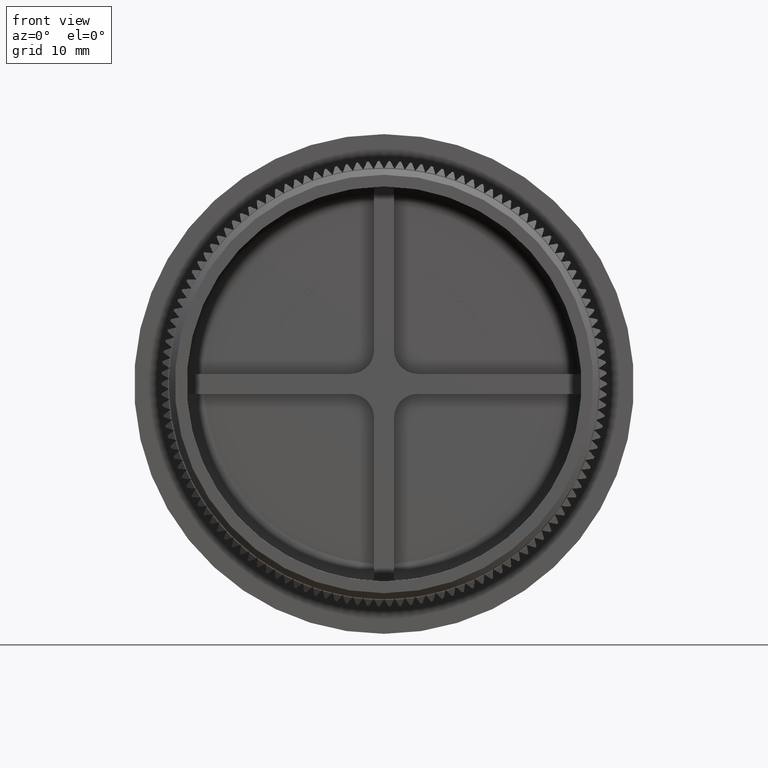
[diagram: clean part render]
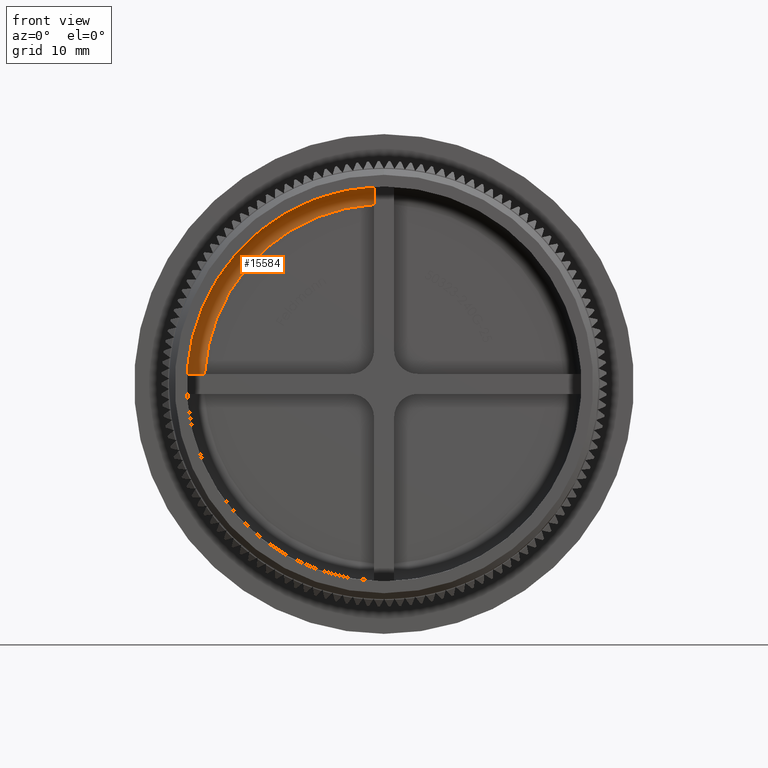
[diagram: same view with one face highlighted and labeled with its STEP entity id]
A machine part, front view. The second image highlights one B-rep face of the part: STEP entity #15584.
In plain terms, the highlighted toroidal blend (fillet) surface has major radius 15.25 mm and minor (blend) radius 1.5 mm.
Its self-contained STEP definition (entity closure, byte-faithful):
#2726 = EDGE_CURVE ( 'NONE', #43988, #15784, #33346, .T. ) ;
#2791 = CARTESIAN_POINT ( 'NONE',  ( -0.8499999999999989800, 12.46594570067064600, 16.57589532115724800 ) ) ;
#2938 = CARTESIAN_POINT ( 'NONE',  ( -0.8499999999999990900, 13.26077810008157000, 15.61968799294009700 ) ) ;
#3190 = DIRECTION ( 'NONE',  ( 0.0000000000000000000, 0.0000000000000000000, -1.000000000000000000 ) ) ;
#3860 = CARTESIAN_POINT ( 'NONE',  ( 0.0000000000000000000, 11.80000000000000200, 0.0000000000000000000 ) ) ;
#4583 = CARTESIAN_POINT ( 'NONE',  ( -15.89060753896303500, 13.14891304946742100, 0.8499999999999999800 ) ) ;
#5528 = VERTEX_POINT ( 'NONE', #43030 ) ;
#6187 = CARTESIAN_POINT ( 'NONE',  ( -0.8499999999999989800, 12.71507486603357200, 16.42059218718276600 ) ) ;
#6467 = AXIS2_PLACEMENT_3D ( 'NONE', #15881, #22214, #12109 ) ;
#7830 = CARTESIAN_POINT ( 'NONE',  ( -15.97878555281432400, 13.10192657694011100, 0.8500000000000000900 ) ) ;
#7843 = TOROIDAL_SURFACE ( 'NONE', #34239, 15.25000000000000200, 1.500000000000000000 ) ;
#7969 = CARTESIAN_POINT ( 'NONE',  ( -16.53742623833255400, 12.55833333345030300, 0.8500000000000002000 ) ) ;
#11164 = EDGE_CURVE ( 'NONE', #24586, #5528, #14002, .T. ) ;
#11249 = CARTESIAN_POINT ( 'NONE',  ( -16.42668472696165300, 12.72299105258398000, 0.8499999999999999800 ) ) ;
#11409 = CARTESIAN_POINT ( 'NONE',  ( -16.72841893306118200, 11.99546715429658800, 0.8499999999999997600 ) ) ;
#12005 = AXIS2_PLACEMENT_3D ( 'NONE', #23512, #40113, #3190 ) ;
#12109 = DIRECTION ( 'NONE',  ( 0.0000000000000000000, 0.0000000000000000000, -1.000000000000000000 ) ) ;
#14002 = CIRCLE ( 'NONE', #12005, 16.75000000000000000 ) ;
#14862 = DIRECTION ( 'NONE',  ( -0.0000000000000000000, -1.000000000000000000, -0.0000000000000000000 ) ) ;
#15162 = DIRECTION ( 'NONE',  ( 0.0000000000000000000, 0.0000000000000000000, -1.000000000000000000 ) ) ;
#15584 = ADVANCED_FACE ( 'NONE', ( #34471 ), #7843, .F. ) ;
#15615 = ORIENTED_EDGE ( 'NONE', *, *, #2726, .F. ) ;
#15784 = VERTEX_POINT ( 'NONE', #36448 ) ;
#15881 = CARTESIAN_POINT ( 'NONE',  ( 0.0000000000000000000, 13.30000000000000200, 0.0000000000000000000 ) ) ;
#18411 = CARTESIAN_POINT ( 'NONE',  ( -16.14183045129500000, 12.99324325322319700, 0.8500000000000002000 ) ) ;
#18564 = CARTESIAN_POINT ( 'NONE',  ( -16.21749909697371500, 12.93139394674204800, 0.8500000000000000900 ) ) ;
#19869 = CARTESIAN_POINT ( 'NONE',  ( -0.8499999999999993100, 13.11145011687091600, 15.98124433810763500 ) ) ;
#20782 = B_SPLINE_CURVE_WITH_KNOTS ( 'NONE', 3,
 ( #35404, #35106, #41956, #4583, #7830, #18411, #18564, #11249, #7969, #31797, #11409, #42246 ),
 .UNSPECIFIED., .F., .F.,
 ( 4, 2, 2, 2, 2, 4 ),
 ( 0.007325603181481520800, 0.007911859963955277000, 0.008204988355192156800, 0.008498116746429034900, 0.009084373528902798000, 0.009670630311376562900 ),
 .UNSPECIFIED. ) ;
#22214 = DIRECTION ( 'NONE',  ( -0.0000000000000000000, -1.000000000000000000, -0.0000000000000000000 ) ) ;
#23512 = CARTESIAN_POINT ( 'NONE',  ( 0.0000000000000000000, 11.80000000000000200, 0.0000000000000000000 ) ) ;
#24339 = EDGE_CURVE ( 'NONE', #15784, #24586, #20782, .T. ) ;
#24586 = VERTEX_POINT ( 'NONE', #39063 ) ;
#26995 = CARTESIAN_POINT ( 'NONE',  ( -0.8499999999999985300, 13.30000000000000200, 15.22629304853942700 ) ) ;
#29840 = CARTESIAN_POINT ( 'NONE',  ( -0.8499999999999989800, 12.55214590025177800, 16.52965090127197800 ) ) ;
#29987 = CARTESIAN_POINT ( 'NONE',  ( -0.8499999999999989800, 12.79229755530745500, 16.35706282757810800 ) ) ;
#30136 = CARTESIAN_POINT ( 'NONE',  ( -0.8499999999999984200, 13.29999999999999400, 15.42202072023010800 ) ) ;
#31484 = ORIENTED_EDGE ( 'NONE', *, *, #34088, .F. ) ;
#31797 = CARTESIAN_POINT ( 'NONE',  ( -16.68957376649012000, 12.19255747976922600, 0.8499999999999999800 ) ) ;
#33346 = CIRCLE ( 'NONE', #6467, 15.25000000000000200 ) ;
#34088 = EDGE_CURVE ( 'NONE', #5528, #43988, #42393, .T. ) ;
#34239 = AXIS2_PLACEMENT_3D ( 'NONE', #3860, #14862, #15162 ) ;
#34471 = FACE_OUTER_BOUND ( 'NONE', #36609, .T. ) ;
#35106 = CARTESIAN_POINT ( 'NONE',  ( -15.42172234357066600, 13.30000000000000100, 0.8499999999999999800 ) ) ;
#35404 = CARTESIAN_POINT ( 'NONE',  ( -15.22629304853942700, 13.30000000000000200, 0.8499999999999998700 ) ) ;
#36448 = CARTESIAN_POINT ( 'NONE',  ( -15.22629304853942700, 13.30000000000000200, 0.8499999999999998700 ) ) ;
#36609 = EDGE_LOOP ( 'NONE', ( #31484, #39696, #37616, #15615 ) ) ;
#37149 = CARTESIAN_POINT ( 'NONE',  ( -0.8499999999999982000, 11.80000000000000200, 16.72841893306118900 ) ) ;
#37616 = ORIENTED_EDGE ( 'NONE', *, *, #24339, .F. ) ;
#39063 = CARTESIAN_POINT ( 'NONE',  ( -16.72841893306119200, 11.80000000000000800, 0.8499999999999999800 ) ) ;
#39696 = ORIENTED_EDGE ( 'NONE', *, *, #11164, .F. ) ;
#40113 = DIRECTION ( 'NONE',  ( 0.0000000000000000000, 1.000000000000000000, 0.0000000000000000000 ) ) ;
#40435 = CARTESIAN_POINT ( 'NONE',  ( -0.8499999999999985300, 11.99795278413242600, 16.72841893306119200 ) ) ;
#40571 = CARTESIAN_POINT ( 'NONE',  ( -0.8499999999999989800, 12.19289728655579800, 16.68935273551411300 ) ) ;
#41956 = CARTESIAN_POINT ( 'NONE',  ( -15.61905470557893800, 13.26098222239385300, 0.8500000000000000900 ) ) ;
#42246 = CARTESIAN_POINT ( 'NONE',  ( -16.72841893306119200, 11.80000000000000800, 0.8499999999999999800 ) ) ;
#42393 = B_SPLINE_CURVE_WITH_KNOTS ( 'NONE', 3,
 ( #37149, #40435, #40571, #2791, #29840, #6187, #29987, #43391, #19869, #2938, #30136, #26995 ),
 .UNSPECIFIED., .F., .F.,
 ( 4, 2, 2, 2, 2, 4 ),
 ( 0.005019739587722916000, 0.005606448928057511900, 0.005899803598224810300, 0.006193158268392107800, 0.006779867608726711600, 0.007366576949061314500 ),
 .UNSPECIFIED. ) ;
#43030 = CARTESIAN_POINT ( 'NONE',  ( -0.8499999999999982000, 11.80000000000000200, 16.72841893306118900 ) ) ;
#43218 = CARTESIAN_POINT ( 'NONE',  ( -0.8499999999999985300, 13.30000000000000200, 15.22629304853942700 ) ) ;
#43391 = CARTESIAN_POINT ( 'NONE',  ( -0.8499999999999992000, 12.99992685022590100, 16.14881847320417300 ) ) ;
#43988 = VERTEX_POINT ( 'NONE', #43218 ) ;